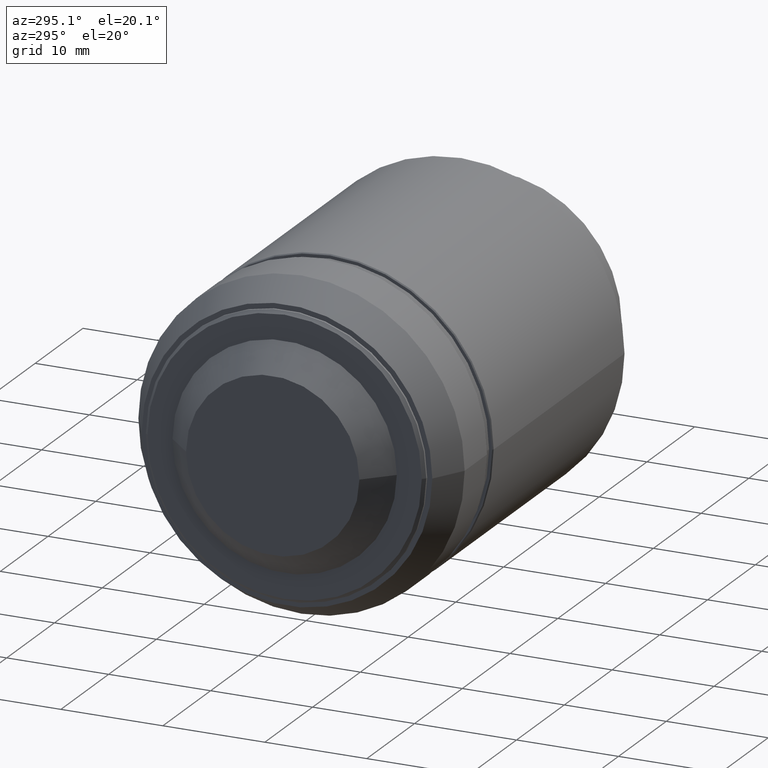
[diagram: clean part render]
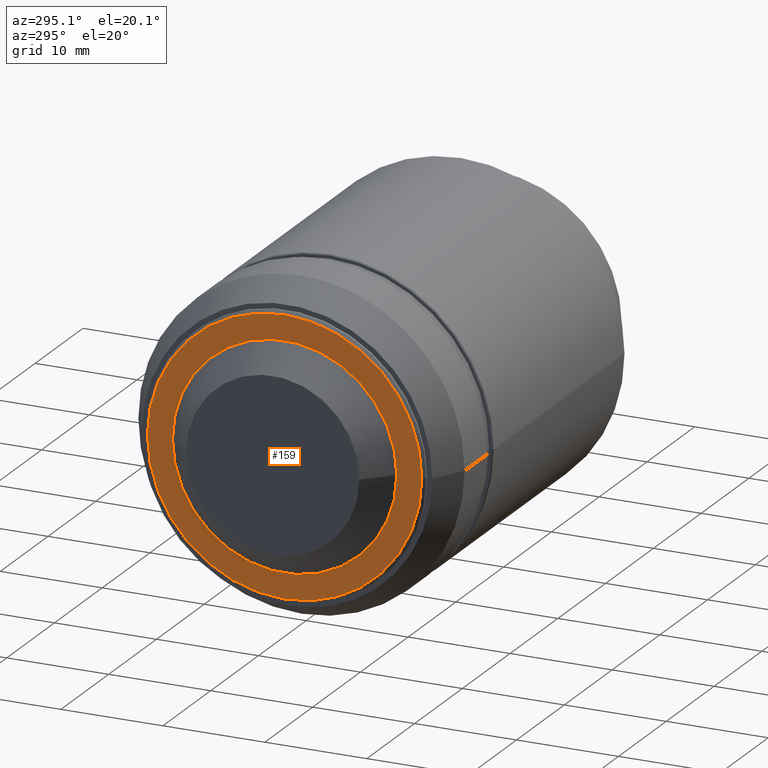
[diagram: same view with one face highlighted and labeled with its STEP entity id]
A machine part, auxiliary view. The second image highlights one B-rep face of the part: STEP entity #159.
In plain terms, the highlighted planar face has unit normal (-1, -0, 0).
Its self-contained STEP definition (entity closure, byte-faithful):
#13 = AXIS2_PLACEMENT_3D ( 'NONE', #21, #1340, #889 ) ;
#20 = VERTEX_POINT ( 'NONE', #659 ) ;
#21 = CARTESIAN_POINT ( 'NONE',  ( -1.500000000000000000, -5.613287612504789354E-15, 0.000000000000000000 ) ) ;
#23 = VERTEX_POINT ( 'NONE', #779 ) ;
#40 = FACE_OUTER_BOUND ( 'NONE', #504, .T. ) ;
#49 = AXIS2_PLACEMENT_3D ( 'NONE', #483, #1131, #141 ) ;
#141 = DIRECTION ( 'NONE',  ( -1.450976885110712419E-16, 1.000000000000000000, 0.000000000000000000 ) ) ;
#150 = EDGE_CURVE ( 'NONE', #20, #528, #1404, .T. ) ;
#159 = ADVANCED_FACE ( 'NONE', ( #40, #1350 ), #359, .T. ) ;
#160 = CIRCLE ( 'NONE', #827, 11.00000000000000000 ) ;
#192 = ORIENTED_EDGE ( 'NONE', *, *, #150, .F. ) ;
#242 = EDGE_LOOP ( 'NONE', ( #844, #1002 ) ) ;
#274 = CARTESIAN_POINT ( 'NONE',  ( -1.500000000000000000, -13.44999999999999929, 0.000000000000000000 ) ) ;
#276 = CIRCLE ( 'NONE', #13, 11.00000000000000000 ) ;
#291 = EDGE_CURVE ( 'NONE', #1393, #23, #160, .T. ) ;
#359 = PLANE ( 'NONE',  #574 ) ;
#366 = DIRECTION ( 'NONE',  ( -1.450976885110712419E-16, 1.000000000000000000, 0.000000000000000000 ) ) ;
#396 = ORIENTED_EDGE ( 'NONE', *, *, #1256, .F. ) ;
#482 = CIRCLE ( 'NONE', #1248, 13.44999999999999929 ) ;
#483 = CARTESIAN_POINT ( 'NONE',  ( -1.500000000000000000, -5.613287612504789354E-15, 0.000000000000000000 ) ) ;
#489 = DIRECTION ( 'NONE',  ( -1.000000000000000000, -1.421085471520199908E-16, 0.000000000000000000 ) ) ;
#504 = EDGE_LOOP ( 'NONE', ( #396, #192 ) ) ;
#525 = DIRECTION ( 'NONE',  ( 1.000000000000000000, 1.421085471520199908E-16, 0.000000000000000000 ) ) ;
#528 = VERTEX_POINT ( 'NONE', #274 ) ;
#574 = AXIS2_PLACEMENT_3D ( 'NONE', #592, #489, #683 ) ;
#592 = CARTESIAN_POINT ( 'NONE',  ( -1.500000000000000000, 12.22499999999999964, 0.000000000000000000 ) ) ;
#659 = CARTESIAN_POINT ( 'NONE',  ( -1.500000000000000000, 13.44999999999999929, -1.647149944853189991E-15 ) ) ;
#683 = DIRECTION ( 'NONE',  ( -1.421085471520199908E-16, 1.000000000000000000, 0.000000000000000000 ) ) ;
#715 = DIRECTION ( 'NONE',  ( -1.379893674072460211E-16, 1.000000000000000000, 0.000000000000000000 ) ) ;
#779 = CARTESIAN_POINT ( 'NONE',  ( -1.500000000000000000, -11.00000000000000000, 0.000000000000000000 ) ) ;
#805 = CARTESIAN_POINT ( 'NONE',  ( -1.500000000000000000, 11.00000000000000000, -1.347111479062089982E-15 ) ) ;
#827 = AXIS2_PLACEMENT_3D ( 'NONE', #1073, #1050, #715 ) ;
#844 = ORIENTED_EDGE ( 'NONE', *, *, #1371, .T. ) ;
#876 = CARTESIAN_POINT ( 'NONE',  ( -1.500000000000000000, -5.613287612504789354E-15, 0.000000000000000000 ) ) ;
#889 = DIRECTION ( 'NONE',  ( -1.379893674072460211E-16, 1.000000000000000000, 0.000000000000000000 ) ) ;
#1002 = ORIENTED_EDGE ( 'NONE', *, *, #291, .T. ) ;
#1050 = DIRECTION ( 'NONE',  ( 1.000000000000000000, 1.421085471520199908E-16, 0.000000000000000000 ) ) ;
#1073 = CARTESIAN_POINT ( 'NONE',  ( -1.500000000000000000, -5.613287612504789354E-15, 0.000000000000000000 ) ) ;
#1131 = DIRECTION ( 'NONE',  ( 1.000000000000000000, 1.421085471520199908E-16, 0.000000000000000000 ) ) ;
#1248 = AXIS2_PLACEMENT_3D ( 'NONE', #876, #525, #366 ) ;
#1256 = EDGE_CURVE ( 'NONE', #528, #20, #482, .T. ) ;
#1340 = DIRECTION ( 'NONE',  ( 1.000000000000000000, 1.421085471520199908E-16, 0.000000000000000000 ) ) ;
#1350 = FACE_BOUND ( 'NONE', #242, .T. ) ;
#1371 = EDGE_CURVE ( 'NONE', #23, #1393, #276, .T. ) ;
#1393 = VERTEX_POINT ( 'NONE', #805 ) ;
#1404 = CIRCLE ( 'NONE', #49, 13.44999999999999929 ) ;